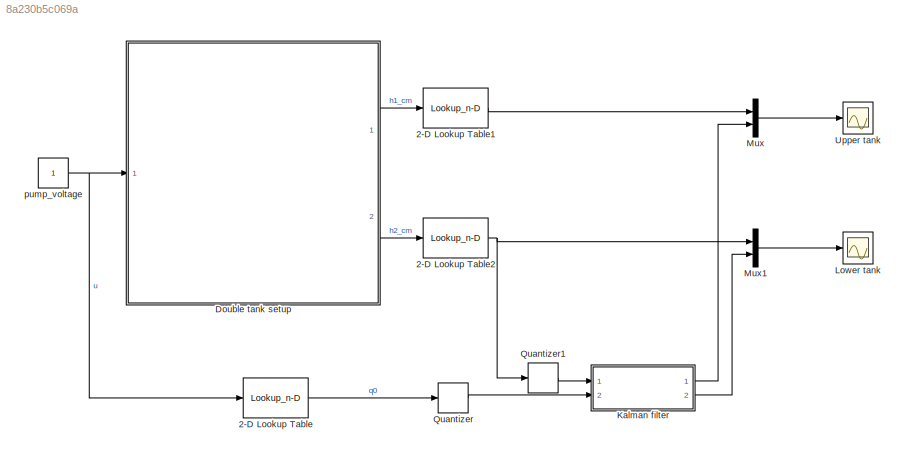
MODEL slx_8a230b5c069a
KIND model
CONFIG AbsTol = auto
CONFIG EnableMultiTasking = off
CONFIG FixedStep = auto
CONFIG MaxStep = auto
CONFIG MinStep = auto
CONFIG RelTol = 1e-3
CONFIG SampleTimeConstraint = Unconstrained
CONFIG Solver = VariableStepAuto
CONFIG SolverName = VariableStepAuto
CONFIG StartTime = 0.0
CONFIG StopTime = 1000
BLOCK [Lookup_n-D] 2-D Lookup Table
  BreakpointsForDimension1 = x
  BreakpointsForDimension2 = [1:3]
  NumberOfTableDimensions = 1
  Ports = [1, 1]
  RndMeth = Simplest
  Table = y
BLOCK [Lookup_n-D] 2-D Lookup Table1
  BreakpointsForDimension1 = x
  BreakpointsForDimension2 = [1:3]
  NumberOfTableDimensions = 1
  Ports = [1, 1]
  RndMeth = Simplest
  Table = y
BLOCK [Lookup_n-D] 2-D Lookup Table2
  BreakpointsForDimension1 = x
  BreakpointsForDimension2 = [1:3]
  NumberOfTableDimensions = 1
  Ports = [1, 1]
  RndMeth = Simplest
  Table = y
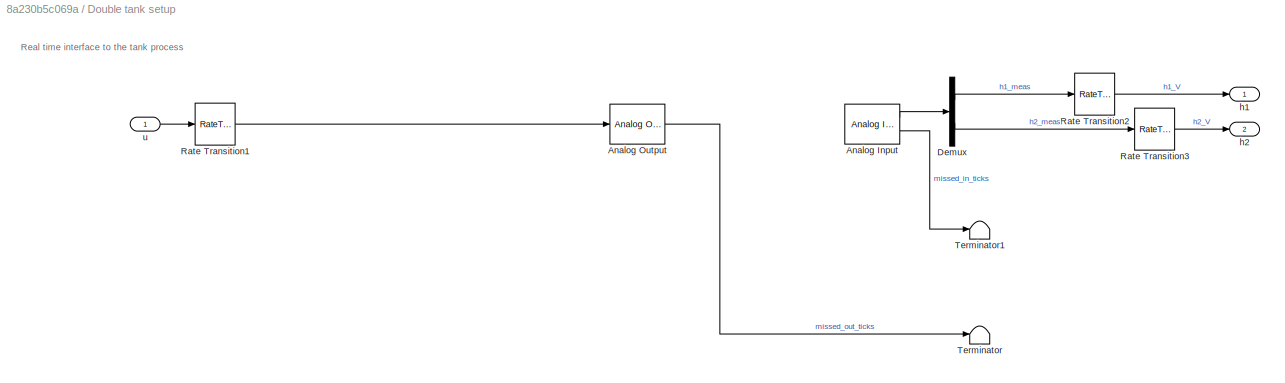
BLOCK [SubSystem] Double tank setup
  AncestorBlock = R0002E_lib/Double tank setup
  Ports = [1, 2]
  RequestExecContextInheritance = off
  StopFcn = chn =get_param(gcb,'u_ch');                          \ns = daq.createSession('ni');                         \nchannel = ['ao',chn];                                \ns.addAnalogOutputChannel('Dev1', channel, 'Voltage');\nx = zeros(5,1);                                      \ns.queueOutputData(x);                                \nlh = s.addlistener('DataRequired', ...               \n@(src,event) src.queue...<+472ch>
BLOCK [Reference] Double tank setup/Analog Input  REF=sldrtlib/Analog Input
  AttributesFormatString = National Instruments\nPCI-6024E [auto]
  Ports = [0, 2]
  SourceBlock = sldrtlib/Analog Input
  SourceProductBaseCode = WT
  SourceProductName = Simulink Desktop Real-Time
  SourceType = Simulink Desktop Real-Time Analog Input
BLOCK [Reference] Double tank setup/Analog Output  REF=sldrtlib/Analog Output
  AttributesFormatString = National Instruments\nPCI-6024E [auto]
  Ports = [1, 1]
  SourceBlock = sldrtlib/Analog Output
  SourceProductBaseCode = WT
  SourceProductName = Simulink Desktop Real-Time
  SourceType = Simulink Desktop Real-Time Analog Output
BLOCK [Demux] Double tank setup/Demux
  DisplayOption = bar
  Outputs = 2
  Ports = [1, 2]
BLOCK [RateTransition] Double tank setup/Rate Transition1
  OutPortSampleTime = ts
BLOCK [RateTransition] Double tank setup/Rate Transition2
BLOCK [RateTransition] Double tank setup/Rate Transition3
BLOCK [Terminator] Double tank setup/Terminator
BLOCK [Terminator] Double tank setup/Terminator1
BLOCK [Outport] Double tank setup/h1
  IconDisplay = Port number
BLOCK [Outport] Double tank setup/h2
  IconDisplay = Port number
  Port = 2
BLOCK [Inport] Double tank setup/u
  IconDisplay = Port number
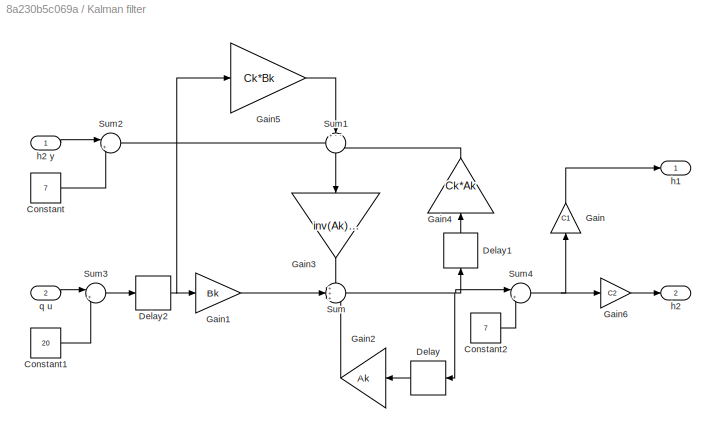
BLOCK [SubSystem] Kalman filter
  Ports = [2, 2]
  RequestExecContextInheritance = off
BLOCK [Constant] Kalman filter/Constant
  Value = 7
BLOCK [Constant] Kalman filter/Constant1
  Value = 20
BLOCK [Constant] Kalman filter/Constant2
  Value = 7
BLOCK [Delay] Kalman filter/Delay
  DelayLength = 1
  InitialCondition = 0
  InputPortMap = u0
  Ports = [1, 1]
BLOCK [Delay] Kalman filter/Delay1
  DelayLength = 1
  InitialCondition = 0
  InputPortMap = u0
  Ports = [1, 1]
BLOCK [Delay] Kalman filter/Delay2
  DelayLength = 1
  InitialCondition = 0
  InputPortMap = u0
  Ports = [1, 1]
BLOCK [Gain] Kalman filter/Gain
  Gain = C1
  Multiplication = Matrix(K*u)
  OutDataTypeStr = Inherit: Inherit via internal rule
  ParamDataTypeStr = Inherit: Inherit via internal rule
  SaturateOnIntegerOverflow = off
BLOCK [Gain] Kalman filter/Gain1
  Gain = Bk
  Multiplication = Matrix(K*u)
  OutDataTypeStr = Inherit: Inherit via internal rule
  ParamDataTypeStr = Inherit: Inherit via internal rule
  SaturateOnIntegerOverflow = off
BLOCK [Gain] Kalman filter/Gain2
  Gain = Ak
  Multiplication = Matrix(K*u)
  OutDataTypeStr = Inherit: Inherit via internal rule
  ParamDataTypeStr = Inherit: Inherit via internal rule
  SaturateOnIntegerOverflow = off
BLOCK [Gain] Kalman filter/Gain3
  Gain = inv(Ak)*K
  Multiplication = Matrix(K*u)
  OutDataTypeStr = Inherit: Inherit via internal rule
  ParamDataTypeStr = Inherit: Inherit via internal rule
  SaturateOnIntegerOverflow = off
BLOCK [Gain] Kalman filter/Gain4
  Gain = Ck*Ak
  Multiplication = Matrix(K*u)
  OutDataTypeStr = Inherit: Inherit via internal rule
  ParamDataTypeStr = Inherit: Inherit via internal rule
  SaturateOnIntegerOverflow = off
BLOCK [Gain] Kalman filter/Gain5
  Gain = Ck*Bk
  Multiplication = Matrix(K*u)
  OutDataTypeStr = Inherit: Inherit via internal rule
  ParamDataTypeStr = Inherit: Inherit via internal rule
  SaturateOnIntegerOverflow = off
BLOCK [Gain] Kalman filter/Gain6
  Gain = C2
  Multiplication = Matrix(K*u)
  OutDataTypeStr = Inherit: Inherit via internal rule
  ParamDataTypeStr = Inherit: Inherit via internal rule
  SaturateOnIntegerOverflow = off
BLOCK [Sum] Kalman filter/Sum
  IconShape = round
  InputSameDT = off
  Inputs = +++
  OutDataTypeStr = Inherit: Inherit via internal rule
  Ports = [3, 1]
  SaturateOnIntegerOverflow = off
BLOCK [Sum] Kalman filter/Sum1
  IconShape = round
  InputSameDT = off
  Inputs = +--
  OutDataTypeStr = Inherit: Inherit via internal rule
  Ports = [3, 1]
  SaturateOnIntegerOverflow = off
BLOCK [Sum] Kalman filter/Sum2
  IconShape = round
  InputSameDT = off
  Inputs = |+-
  OutDataTypeStr = Inherit: Inherit via internal rule
  Ports = [2, 1]
  SaturateOnIntegerOverflow = off
BLOCK [Sum] Kalman filter/Sum3
  IconShape = round
  InputSameDT = off
  Inputs = |+-
  OutDataTypeStr = Inherit: Inherit via internal rule
  Ports = [2, 1]
  SaturateOnIntegerOverflow = off
BLOCK [Sum] Kalman filter/Sum4
  IconShape = round
  InputSameDT = off
  Inputs = |++
  OutDataTypeStr = Inherit: Inherit via internal rule
  Ports = [2, 1]
  SaturateOnIntegerOverflow = off
BLOCK [Outport] Kalman filter/h1
  IconDisplay = Port number
BLOCK [Outport] Kalman filter/h2 
  IconDisplay = Port number
  Port = 2
BLOCK [Inport] Kalman filter/h2 y 
  IconDisplay = Port number
BLOCK [Inport] Kalman filter/q u
  IconDisplay = Port number
  Port = 2
BLOCK [Scope] Lower tank
  Floating = off
  NumInputPorts = 1
  Ports = [1]
  ScopeSpecificationString = Simulink.scopes.TimeScopeBlockCfg('CurrentConfiguration', extmgr.ConfigurationSet(extmgr.Configuration('Core','General UI',true),extmgr.Configuration('Core','Source UI',true),extmgr.Configuration('Sources','WiredSimulink',true,'DataLoggingSaveFormat','StructureWithTime','DataLoggingLimitDataPoints',true,'DataLoggingDecimation','1','DataLoggingDecimateData',true,'DataLoggingVariableName','ScopeData...<+1831ch>
BLOCK [Mux] Mux
  DisplayOption = bar
  Inputs = 2
  Ports = [2, 1]
BLOCK [Mux] Mux1
  DisplayOption = bar
  Inputs = 2
  Ports = [2, 1]
BLOCK [Quantizer] Quantizer
  QuantizationInterval = 0.005
BLOCK [Quantizer] Quantizer1
  QuantizationInterval = 0.005
BLOCK [Scope] Upper tank
  Floating = off
  NumInputPorts = 1
  Ports = [1]
  ScopeSpecificationString = Simulink.scopes.TimeScopeBlockCfg('CurrentConfiguration', extmgr.ConfigurationSet(extmgr.Configuration('Core','General UI',true),extmgr.Configuration('Core','Source UI',true),extmgr.Configuration('Sources','WiredSimulink',true,'DataLoggingVariableName','ScopeData2','DataLoggingSaveFormat','StructureWithTime','DataLoggingLimitDataPoints',true,'DataLoggingDecimation','1','DataLoggingDecimateData',tr...<+1822ch>
BLOCK [Constant] pump_voltage
ANNOTATION Double tank setup: Real time interface to the tank process
LINE 2-D Lookup Table1:1 -> Mux:1
NET 2-D Lookup Table2:1 -> Mux1:1, Quantizer1:1
LINE 2-D Lookup Table:1 -> Quantizer:1
LINE Double tank setup:1 -> 2-D Lookup Table1:1
LINE Double tank setup:2 -> 2-D Lookup Table2:1
LINE Kalman filter/Constant1:1 -> Kalman filter/Sum3:2
LINE Kalman filter/Constant2:1 -> Kalman filter/Sum4:2
LINE Kalman filter/Constant:1 -> Kalman filter/Sum2:2
LINE Kalman filter/Delay1:1 -> Kalman filter/Gain4:1
NET Kalman filter/Delay2:1 -> Kalman filter/Gain1:1, Kalman filter/Gain5:1
LINE Kalman filter/Delay:1 -> Kalman filter/Gain2:1
LINE Kalman filter/Gain1:1 -> Kalman filter/Sum:2
LINE Kalman filter/Gain2:1 -> Kalman filter/Sum:3
LINE Kalman filter/Gain3:1 -> Kalman filter/Sum:1
LINE Kalman filter/Gain4:1 -> Kalman filter/Sum1:3
LINE Kalman filter/Gain5:1 -> Kalman filter/Sum1:2
LINE Kalman filter/Gain6:1 -> Kalman filter/h2 :1
LINE Kalman filter/Gain:1 -> Kalman filter/h1:1
LINE Kalman filter/Sum1:1 -> Kalman filter/Gain3:1
LINE Kalman filter/Sum2:1 -> Kalman filter/Sum1:1
LINE Kalman filter/Sum3:1 -> Kalman filter/Delay2:1
NET Kalman filter/Sum4:1 -> Kalman filter/Gain6:1, Kalman filter/Gain:1
NET Kalman filter/Sum:1 -> Kalman filter/Delay1:1, Kalman filter/Delay:1, Kalman filter/Sum4:1
LINE Kalman filter/h2 y :1 -> Kalman filter/Sum2:1
LINE Kalman filter/q u:1 -> Kalman filter/Sum3:1
LINE Kalman filter:1 -> Mux:2
LINE Kalman filter:2 -> Mux1:2
LINE Mux1:1 -> Lower tank:1
LINE Mux:1 -> Upper tank:1
LINE Quantizer1:1 -> Kalman filter:1
LINE Quantizer:1 -> Kalman filter:2
NET pump_voltage:1 -> 2-D Lookup Table:1, Double tank setup:1
note: NET lines group one-source signal fan-out (src -> all destinations, sorted); 1:1 wires keep LINE
